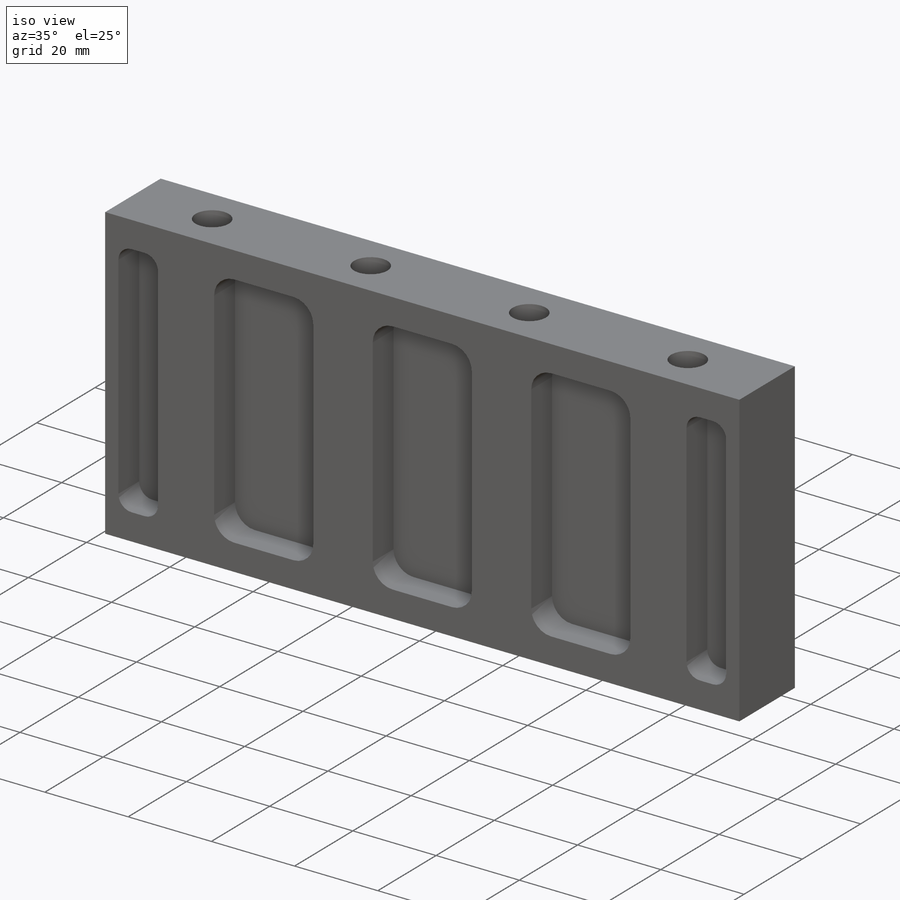
[diagram: iso view]
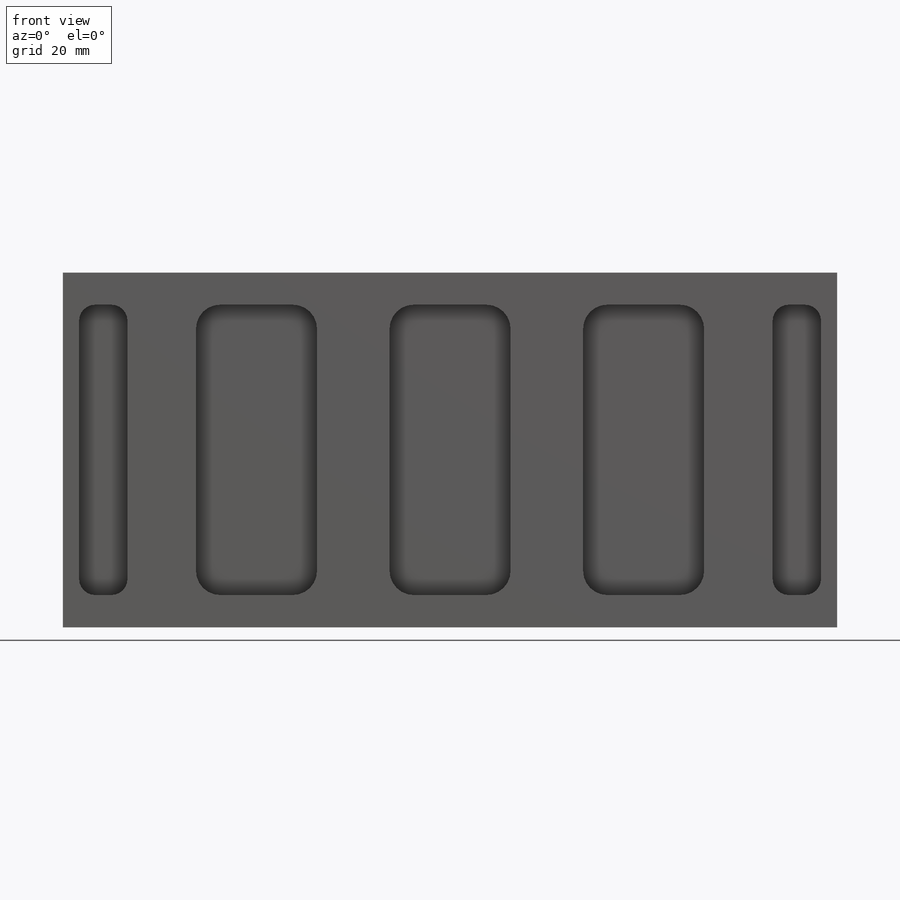
[diagram: front view]
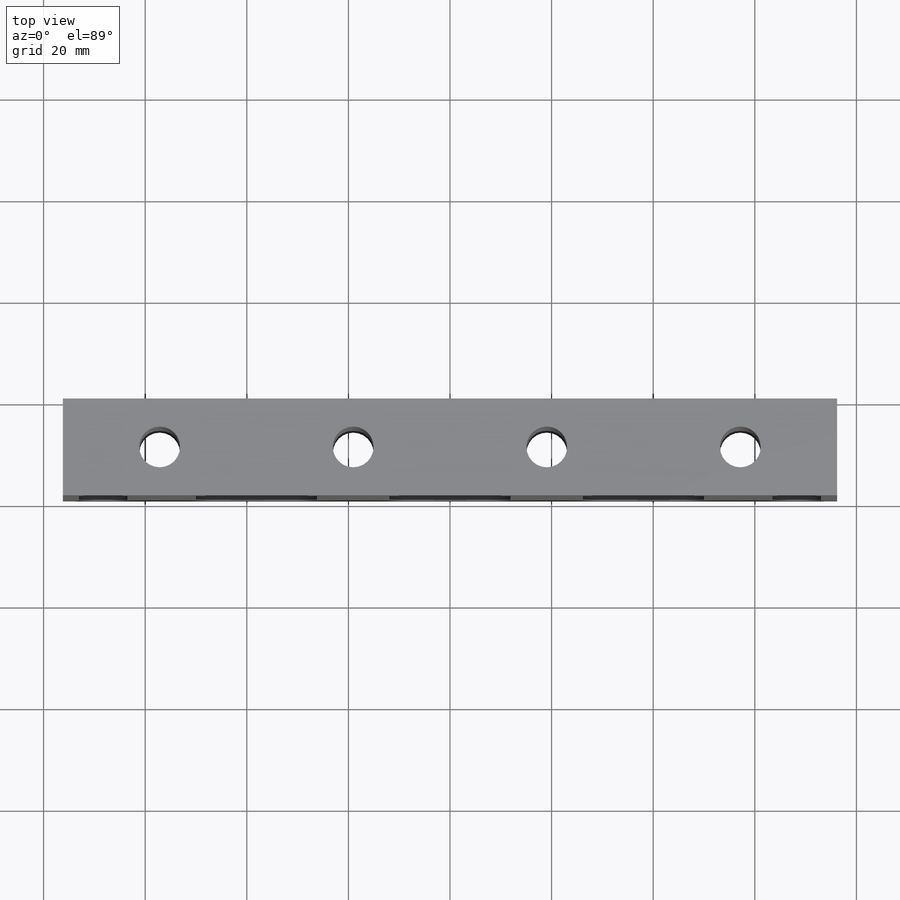
[diagram: top view]
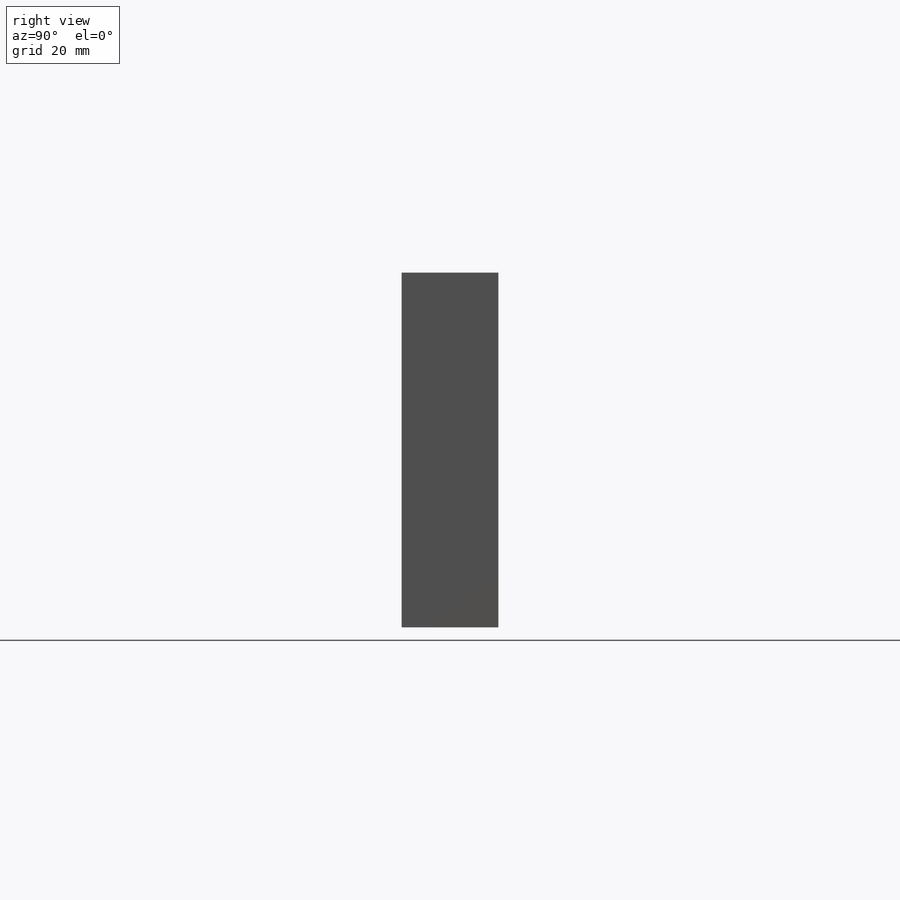
[diagram: right view]
SOLIDWORKS PART (.sldprt)
format: sldprt  version: not decoded by parser v0  size: 261,632 bytes
history: native  units: mm
features: sketch x3, cut_extrude x2, material x1, extrude x1 (+13 scaffold rows collapsed)
feature tree (20):
  scaffold x13  (default folders/planes/origin — collapsed)
  material  "Material <not specified>"
  sketch  "Sketch1"  dims[D1=69.85mm D2=152.4mm]
  extrude  "Boss-Extrude1"  Depth=19.05mm
  sketch  "Sketch2"  dims[D9=4.7625mm D16=3.175mm D1=38.1mm D2=38.1mm D3=23.8125mm D4=23.8125mm D5=23.8125mm D6=6.35mm D7=6.35mm D8=6.35mm D10=9.525mm D11=9.525mm D12=30.1625mm D13=30.1625mm D14=6.35mm D15=6.35mm]
  cut_extrude  "Cut-Extrude1"  Depth=7.1374mm
  sketch  "Sketch3"  dims[D1=9.525mm D2=38.1mm D3=38.1mm D4=38.1mm]
  cut_extrude  "Cut-Extrude2"  [1 undecoded]
decode coverage: 5 of 6 modeling features carry decoded parameters
note: 1 parameter value undecoded
note: suppression state not decoded; provenance and decode notes live in map.json
